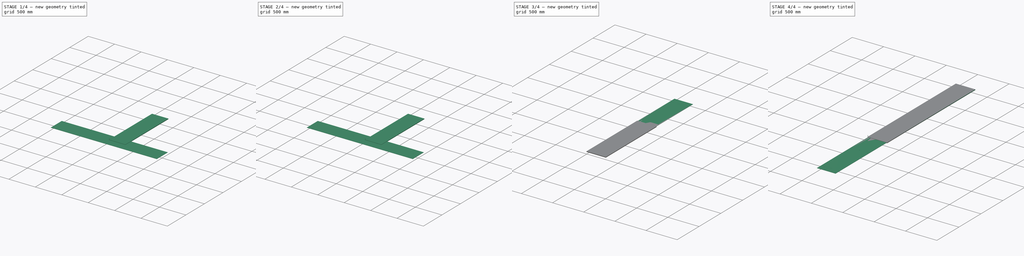
[diagram: build sequence overview — one tinted view per stage of 4, left to right]
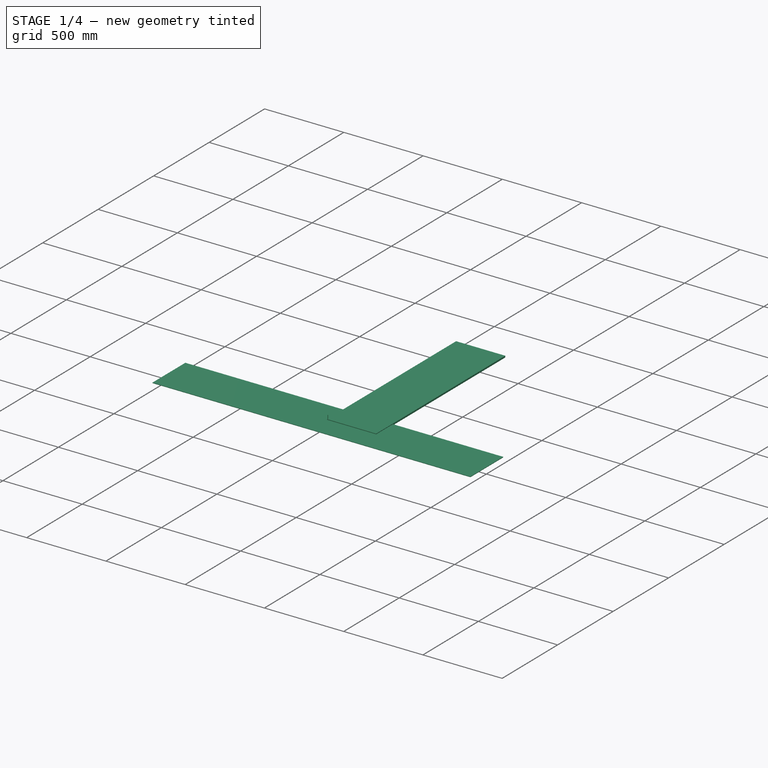
[diagram: stage 1 of 4 — iso view after this stage's code; geometry added in this stage tinted green]
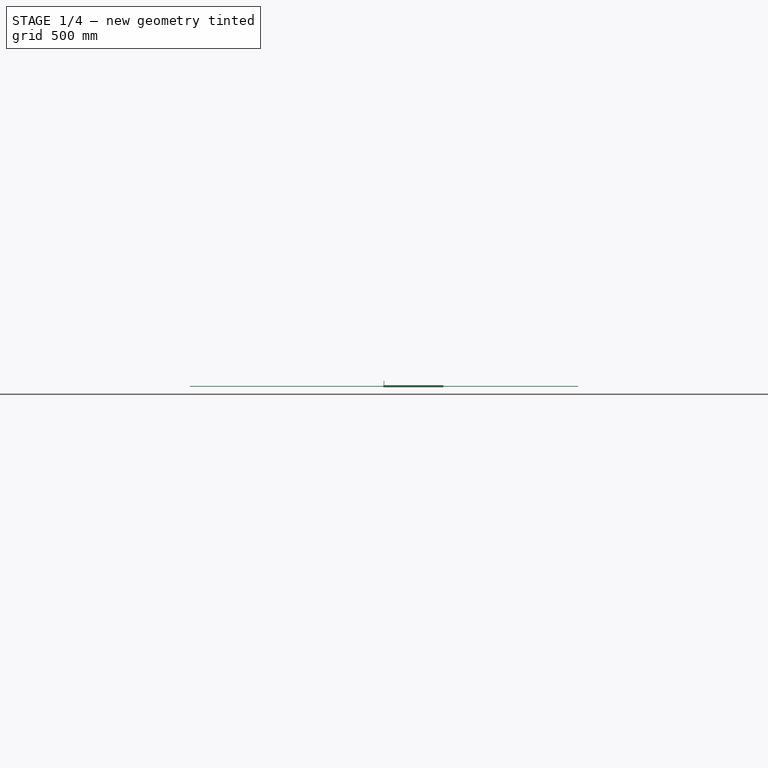
[diagram: stage 1 of 4 — front view after this stage's code; geometry added in this stage tinted green]
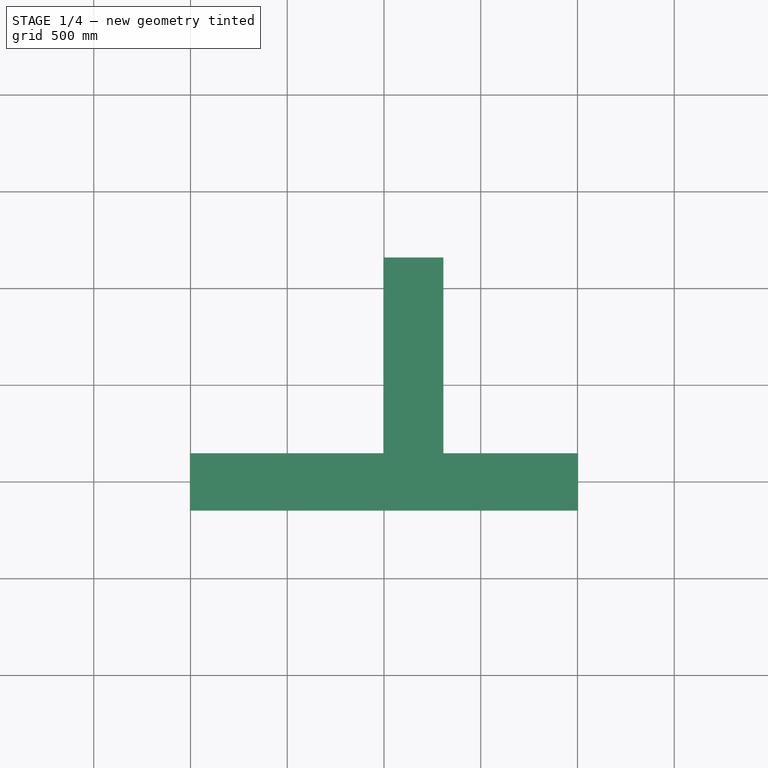
[diagram: stage 1 of 4 — top view after this stage's code; geometry added in this stage tinted green]
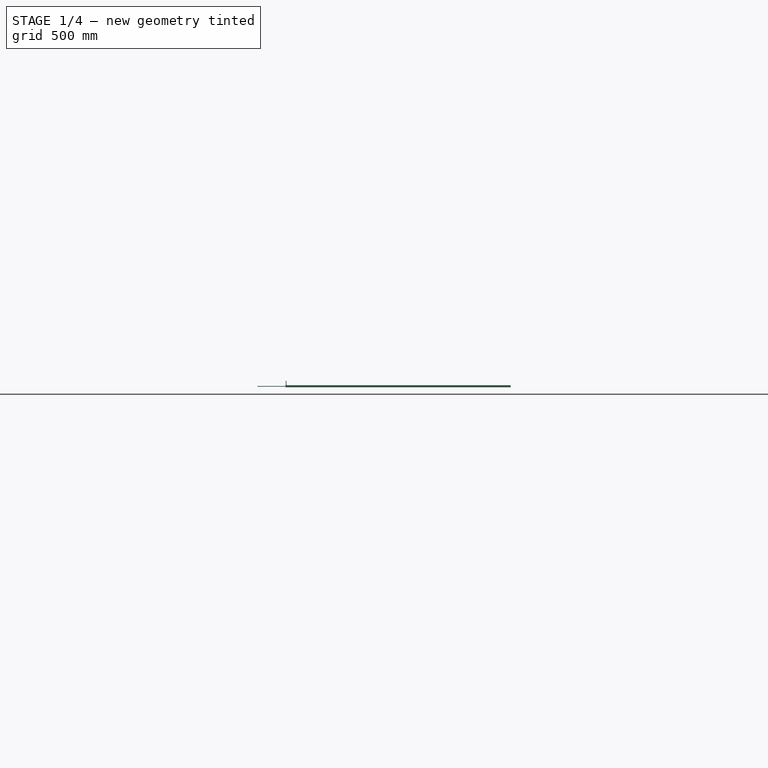
[diagram: stage 1 of 4 — right view after this stage's code; geometry added in this stage tinted green]
FCSTD DOCUMENT  (FreeCAD 0.22R35370 (Git))
Label: light_panel_2m
License: All rights reserved
LicenseURL: http://en.wikipedia.org/wiki/All_rights_reserved
objects: Part::FeaturePython×29, Path::FeaturePython×14, Sketcher::SketchObject×6, App::DocumentObjectGroup×6, PartDesign::SubShapeBinder×5, PartDesign::Pocket×4, Spreadsheet::Sheet×2, App::FeaturePython×2, PartDesign::Pad×1, Part::Part2DObjectPython×1, PartDesign::Body×1
note: 56 computed .brp shape members not serialized (recipe doc carries the construction recipe); baked Part::Feature solids carry a one-line shape summary decoded from their .brp
EXTERNAL_REF file=ULY-P91-20W.FCStd obj=Sketch001

FEATURE [Spreadsheet::Sheet] Spreadsheet  label="ТЗ"
  cells = A1='Светильник 50 мм от края по длине (левый и правый); A2='По ширине массив из 3 светильников, от края до края 300 мм; A3='длина массива 2000 мм; A4='Дырки под стяжки (20 мм от блока, 2 дырки); A5='6 крепёжных отверстий; A6='стяжки для светильника 2 шт по длине (расстояние 1/3 длины светильника); A7='все дырки 3,3 под провод 6 мм
FEATURE [Sketcher::SketchObject] Sketch
  FullyConstrained = true
  MapMode = 5
  Support = -> [XY_Plane]
  expr: Constraints[10] = <<Properties>>.length
  expr: Constraints[11] = <<Properties>>.width
  sketch-geometry (5):
    g0: LineSegment StartX=-1003.05 StartY=148.23 StartZ=0 EndX=-1003.05 EndY=-148.23 EndZ=0
    g1: LineSegment StartX=-1003.05 StartY=-148.23 StartZ=0 EndX=1003.05 EndY=-148.23 EndZ=0
    g2: LineSegment StartX=1003.05 StartY=-148.23 StartZ=0 EndX=1003.05 EndY=148.23 EndZ=0
    g3: LineSegment StartX=1003.05 StartY=148.23 StartZ=0 EndX=-1003.05 EndY=148.23 EndZ=0
    g4: GeomPoint X=0 Y=0 Z=0
  constraints (12):
    c: Coincident(g0,g1)
    c: Coincident(g1,g2)
    c: Coincident(g2,g3)
    c: Coincident(g3,g0)
    c: Horizontal(g1)
    c: Horizontal(g3)
    c: Vertical(g0)
    c: Vertical(g2)
    c: Symmetric(g1,g0,g4)
    c: Coincident(g4,g-1)
    c: DistanceX(g0,g2) = 2006.1
    c: DistanceY(g0,g2) = 296.46
FEATURE [PartDesign::SubShapeBinder] Binder  label="lamp_holes"
  BindCopyOnChange = 0
  BindMode = 0
  ClaimChildren = false
  Fuse = false
  MakeFace = false
  OffsetFill = false
  OffsetIntersection = false
  OffsetJoinType = 0
  OffsetOpenResult = false
  PartialLoad = false
  Relative = true
  Support = -> [<external ULY-P91-20W.FCStd>#Sketch001]
  _Version = 2
FEATURE [Sketcher::SketchObject] Sketch001
  ExternalGeometry = -> [Binder]
  FullyConstrained = true
  sketch-geometry (8):
    g0: Circle CenterX=-8.15 CenterY=-3.07e-14 CenterZ=0 NormalX=0 NormalY=0 NormalZ=1 AngleXU=0 Radius=1.65
    g1: Circle CenterX=8.15 CenterY=-3.07e-14 CenterZ=0 NormalX=0 NormalY=0 NormalZ=1 AngleXU=0 Radius=1.65
    g2: Circle CenterX=-8.15 CenterY=-12.5 CenterZ=0 NormalX=0 NormalY=0 NormalZ=1 AngleXU=0 Radius=1.65
    g3: Circle CenterX=8.15 CenterY=-12.5 CenterZ=0 NormalX=0 NormalY=0 NormalZ=1 AngleXU=0 Radius=1.65
    g4: LineSegment StartX=-6.5 StartY=-12.5 StartZ=0 EndX=6.5 EndY=-12.5 EndZ=0
    g5: LineSegment StartX=0 StartY=0 StartZ=0 EndX=0 EndY=-12.5 EndZ=0
    g6: LineSegment StartX=0 StartY=-12.5 StartZ=0 EndX=0 EndY=-3.02e-14 EndZ=0
    g7: LineSegment StartX=0 StartY=-3.07e-14 StartZ=0 EndX=12.5 EndY=0 EndZ=0
  constraints (23):
    c: Vertical(g1,g3)
    c: PointOnObject(g4,g2)
    c: PointOnObject(g4,g3)
    c: Horizontal(g4)
    c: DistanceX(g4,g4) = 13
    c: Equal(g3,g1)
    c: Equal(g3,g0)
    c: Equal(g3,g2)
    c: Diameter(g3) = 3.3
    c: Horizontal(g0,g1)
    c: PointOnObject(g2,g4)
    c: Symmetric(g2,g3,g-2)
    c: Coincident(g-1,g5)
    c: PointOnObject(g5,g4)
    c: Vertical(g5)
    c: Coincident(g5,g6)
    c: PointOnObject(g6,g-2)
    c: Coincident(g6,g7)
    c: Coincident(g7,g-3)
    c: Horizontal(g1,g6)
    c: Equal(g5,g6)
    c: Equal(g6,g7)
    c: Vertical(g0,g2)
FEATURE [PartDesign::SubShapeBinder] Binder001  label="lamp_fix_holes"
  BindCopyOnChange = 0
  BindMode = 0
  ClaimChildren = true
  Fuse = false
  MakeFace = false
  OffsetFill = false
  OffsetIntersection = false
  OffsetJoinType = 0
  OffsetOpenResult = false
  PartialLoad = false
  Placement = pos=(0,0,0) rot=(0,0,1;1.5708rad)
  Relative = false
  Support = -> [Sketch001,Binder,Sketch002]
  _Version = 2
FEATURE [Sketcher::SketchObject] Sketch002
  FullyConstrained = true
  sketch-geometry (3):
    g0: Circle CenterX=15 CenterY=70 CenterZ=0 NormalX=0 NormalY=0 NormalZ=1 AngleXU=0 Radius=1.65
    g1: Circle CenterX=25 CenterY=70 CenterZ=0 NormalX=0 NormalY=0 NormalZ=1 AngleXU=0 Radius=1.65
    g2: GeomPoint X=20 Y=70 Z=0
  constraints (7):
    c: Equal(g0,g1)
    c: Diameter(g0) = 3.3
    c: Horizontal(g0,g1)
    c: DistanceX(g0,g1) = 10
    c: DistanceY(g0) = 70
    c: Symmetric(g0,g1,g2)
    c: DistanceX(g2) = 20
FEATURE [Part::FeaturePython] LinearArray  # WARN: FeaturePython — macro-defined, semantics opaque (R4)
  Alignment = 0
  CellStart = A1
  Count = 3
  Dir = (0,1,0)
  DirIsDriven = true
  DistributionLaw = 0
  DrivenProperty = 1
  EndInclusive = true
  ExposePlacement = false
  GeneratorMode = 0
  MarkerShape = 1
  MarkerSize = 0
  NumElements = 3
  OrientMode = 0
  Placement = pos=(-905.55,-133.23,0) rot=(0,0,1;0rad)
  Point = (0,0,0)
  PointIsDriven = true
  Reverse = false
  SpanEnd = 245.96
  SpanStart = 0
  Step = 122.98
  Type = lattice2LinearArray.LinearArray
  VSGVersion = 1
  Values = 0.0 | 122.97999999999999 | 245.95999999999998
  ValuesSource = 2
  isLattice = 1
  expr: .Placement.Base.x = -<<Properties>>.length / 2 + 47.5 mm + 50 mm
  expr: .Placement.Base.y = -SpanEnd / 2 * .Dir.y - 40.5 mm / 2 + 10 mm
  expr: SpanEnd = <<Properties>>.width - 40.5 mm - 10 mm
FEATURE [Spreadsheet::Sheet] Spreadsheet001  label="Properties"
  cells = B2(length)==stillage_panel_length * sections_number + stillage_panel_gap * (sections_number - 1); C2(width)==(1500 mm - 3.175 mm * 4) / 5 - 1 mm; D2(stillage_panel_gap)==11.1 mm; E2(stillage_panel_length)==997.5 mm; F2(sections_number)=2; G2(fix_offset)==10 mm
FEATURE [Part::FeaturePython] PolarArray  # WARN: FeaturePython — macro-defined, semantics opaque (R4)
  Alignment = 0
  AttacherType = Attacher::AttachEngine3D
  CellStart = A1
  Count = 2
  DistributionLaw = 0
  EndInclusive = false
  ExposePlacement = false
  FlipX = false
  FlipZ = false
  GeneratorMode = 0
  MarkerShape = 1
  MarkerSize = 0
  NumElements = 2
  OrientMode = 2
  Radius = 250
  Reverse = false
  SpanEnd = 360
  SpanStart = 0
  Step = 180
  Type = lattice2PolarArray2.PolarArray
  UseArcRadius = false
  UseArcRange = 0
  VSGVersion = 1
  Values = 0.0 | 180.0
  ValuesSource = 2
  isLattice = 1
FEATURE [Part::FeaturePython] Populate  label="Populate PolarArray with LinearArray"  # WARN: FeaturePython — macro-defined, semantics opaque (R4)
  Copying = 0
  ExposePlacement = false
  MarkerShape = 1
  MarkerSize = 0
  NumElements = 6
  Object = -> LinearArray
  OutputCompounding = 0
  PlacementsTo = -> PolarArray
  Referencing = 1
  Type = lattice2PopulateCopies.LatticePopulateCopies
  isLattice = 1
FEATURE [Part::FeaturePython] Populate001  label="Populate Populate PolarArray with LinearArray with lamp_fix_holes"  # WARN: FeaturePython — macro-defined, semantics opaque (R4)
  Copying = 0
  ExposePlacement = false
  MarkerShape = 1
  MarkerSize = 0
  NumElements = 0
  Object = -> Binder001
  OutputCompounding = 1
  PlacementsTo = -> Populate
  Referencing = 0
  Type = lattice2PopulateCopies.LatticePopulateCopies
  isLattice = 0
FEATURE [PartDesign::SubShapeBinder] Binder002
  BindCopyOnChange = 0
  BindMode = 0
  ClaimChildren = true
  Context = -> Body [Binder002.]
  Fuse = false
  MakeFace = false
  OffsetFill = false
  OffsetIntersection = false
  OffsetJoinType = 0
  OffsetOpenResult = false
  PartialLoad = false
  Relative = true
  Support = -> [Populate001]
  _Version = 2
FEATURE [PartDesign::Pad] Pad
  Direction = (0,0,1)
  Length = 3
  Length2 = 10
  Profile = -> Sketch
  ReferenceAxis = -> Sketch [N_Axis]
  Type = 0
FEATURE [App::FeaturePython] SetupSheet  # Path/CAM operation (typed FeaturePython)
  ClearanceHeightExpression = OpStockZMax+SetupSheet.ClearanceHeightOffset
  ClearanceHeightOffset = 5
  CoolantMode = 0
  CoolantModes = None | Flood | Mist
  FinalDepthExpression = -0.1 mm
  HorizRapid = 0
  ProfileDirection = 1
  ProfileSide = 0
  ProfileUseComp = true
  ProfileprocessCircles = true
  ProfileprocessHoles = true
  ProfileprocessPerimeter = true
  SafeHeightExpression = OpStockZMax+SetupSheet.SafeHeightOffset
  SafeHeightOffset = 3
  StartDepthExpression = 3 mm
  StepDownExpression = 4 mm
  VertRapid = 0
FEATURE [Part::FeaturePython] ToolBit  label="3.175mm Endmill"  # Path/CAM toolbit (typed FeaturePython)
  BitPropertyNames = Chipload | CuttingEdgeHeight | Diameter | Flutes | Length | Material | ShankDiameter | SpindleDirection
  BitShape = <path>
  Chipload = 0
  CuttingEdgeHeight = 30
  Diameter = 3.17
  Flutes = 0
  Length = 10
  Material = 0
  ShankDiameter = 3
  ShapeName = endmill
  SpindleDirection = 0
FEATURE [Path::FeaturePython] __175mm_Endmill  label="3.175mm Endmill001"  # Path/CAM operation (typed FeaturePython)
  HorizFeed = 51.6667
  HorizRapid = 0
  SpindleDir = 0
  SpindleSpeed = 18000
  Tool = -> ToolBit
  ToolNumber = 1
  VertFeed = 16.6667
  VertRapid = 0
  expr: HorizRapid = SetupSheet.HorizRapid
  expr: VertRapid = SetupSheet.VertRapid
FEATURE [App::DocumentObjectGroup] Tools
  Group = -> [__175mm_Endmill]
FEATURE [Part::FeaturePython] Stock  # WARN: FeaturePython — macro-defined, semantics opaque (R4)
  Height = 10
  Length = 310
  Placement = pos=(-3,-3,-3) rot=(0,0,1;0rad)
  StockType = CreateBox
  Width = 1163
  expr: .Placement.Base.x = -3 mm
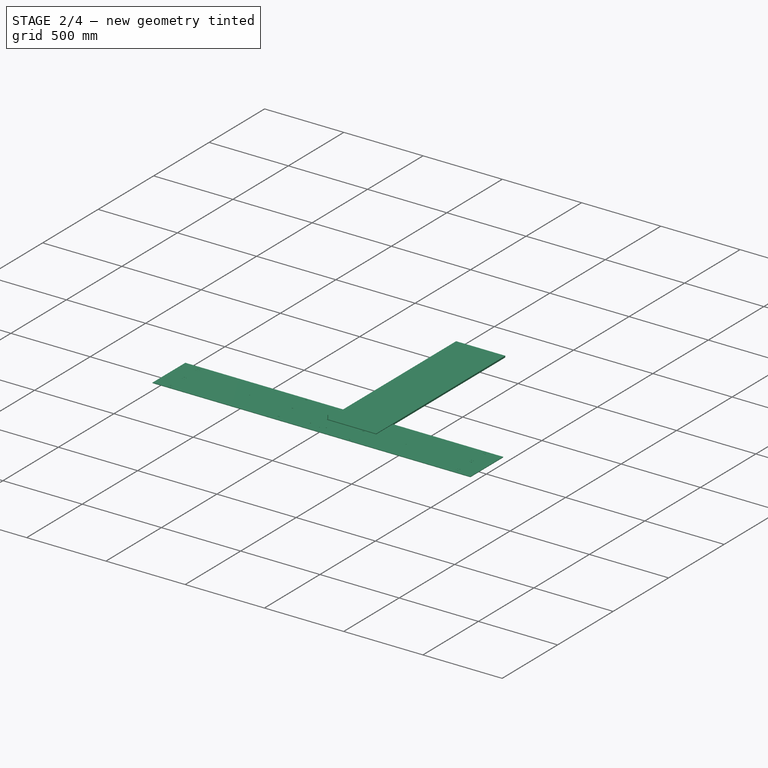
[diagram: stage 2 of 4 — iso view after this stage's code; geometry added in this stage tinted green]
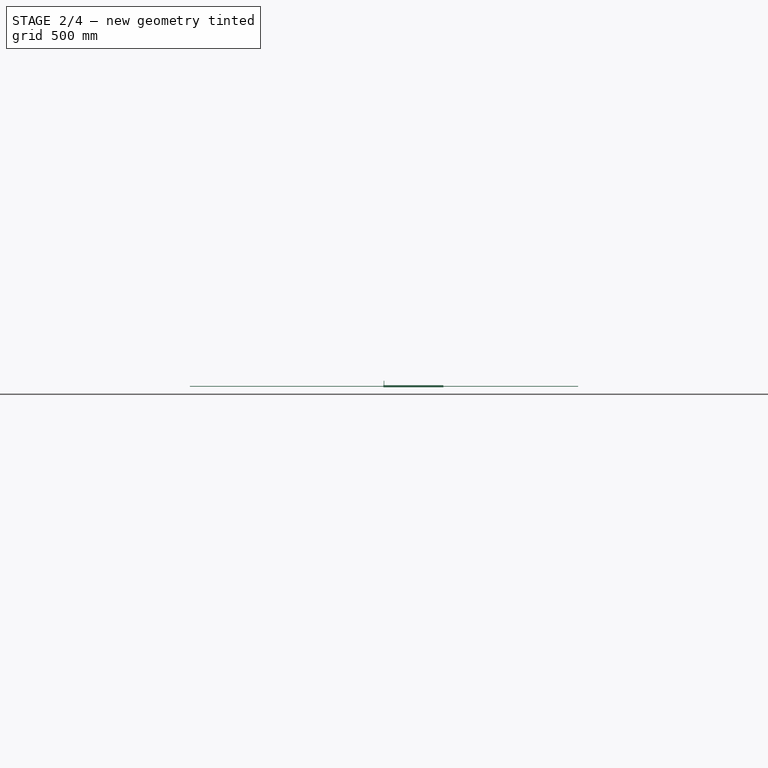
[diagram: stage 2 of 4 — front view after this stage's code; geometry added in this stage tinted green]
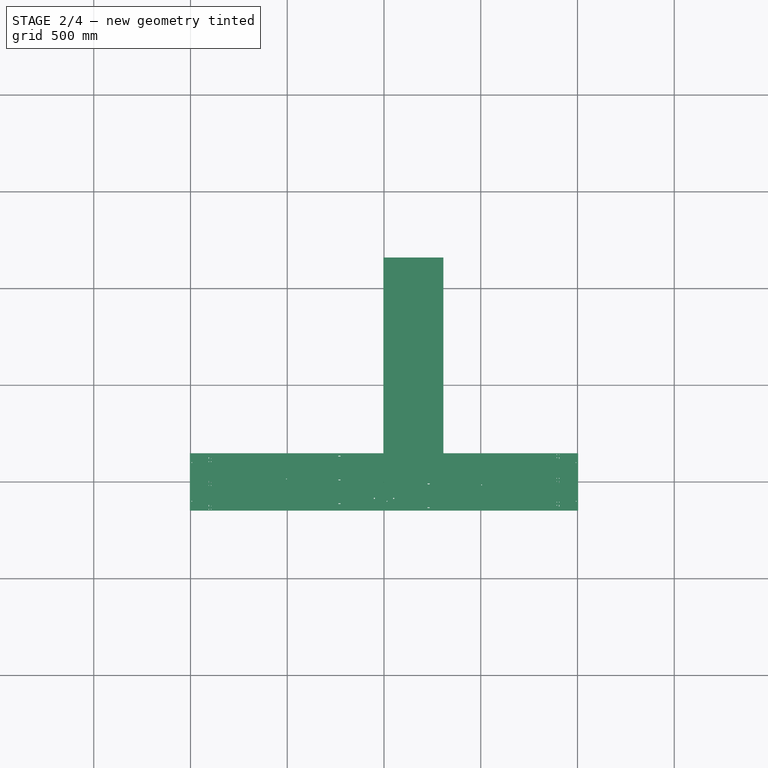
[diagram: stage 2 of 4 — top view after this stage's code; geometry added in this stage tinted green]
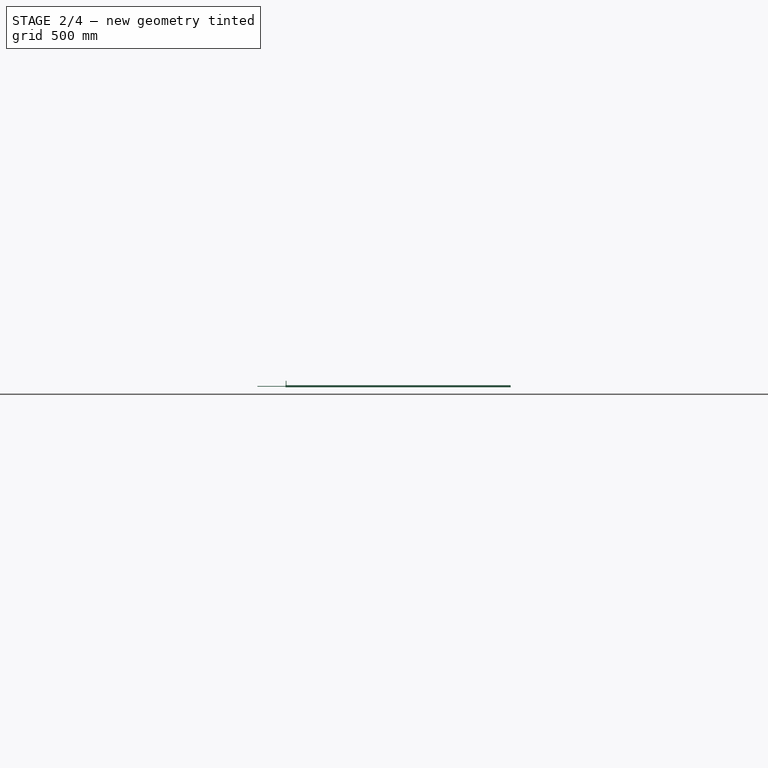
[diagram: stage 2 of 4 — right view after this stage's code; geometry added in this stage tinted green]
FEATURE [PartDesign::Pocket] Pocket
  BaseFeature = -> Pad
  Direction = (0,0,-1)
  Length = 5
  Length2 = 5
  Midplane = true
  Profile = -> Binder002
  Type = 1
FEATURE [Part::FeaturePython] LinearArray001  # WARN: FeaturePython — macro-defined, semantics opaque (R4)
  Alignment = 0
  CellStart = A1
  Count = 2
  Dir = (0,1,0)
  DirIsDriven = true
  DistributionLaw = 0
  DrivenProperty = 1
  EndInclusive = true
  ExposePlacement = false
  GeneratorMode = 0
  MarkerShape = 1
  MarkerSize = 0
  NumElements = 2
  OrientMode = 0
  Placement = pos=(0,-100,0) rot=(0,0,1;0rad)
  Point = (0,0,0)
  PointIsDriven = true
  Reverse = false
  SpanEnd = 200
  SpanStart = 0
  Step = 200
  Type = lattice2LinearArray.LinearArray
  VSGVersion = 1
  Values = 0.0 | 200.0
  ValuesSource = 2
  isLattice = 1
  expr: .Placement.Base.y = -SpanEnd / 2 * .Dir.y
FEATURE [Part::FeaturePython] Placment  label="Custom"  # WARN: FeaturePython — macro-defined, semantics opaque (R4)
  ExposePlacement = true
  FlipZ = false
  Invert = false
  MarkerShape = 1
  MarkerSize = 200
  NumElements = 1
  Placement = pos=(-993.05,0,0) rot=(0,0,1;0rad)
  PlacementChoice = 0
  Type = lattice2Placement.LatticePlacement
  isLattice = 1
  expr: .Placement.Base.x = -<<Properties>>.stillage_panel_length - <<Properties>>.stillage_panel_gap / 2 + <<Properties>>.fix_offset
FEATURE [Part::FeaturePython] Placment001  label="Custom001"  # WARN: FeaturePython — macro-defined, semantics opaque (R4)
  ExposePlacement = true
  FlipZ = false
  Invert = false
  MarkerShape = 1
  MarkerSize = 200
  NumElements = 1
  Placement = pos=(15.55,0,0) rot=(0,0,1;0rad)
  PlacementChoice = 0
  Type = lattice2Placement.LatticePlacement
  isLattice = 1
  expr: .Placement.Base.x = <<Properties>>.stillage_panel_gap / 2 + <<Properties>>.fix_offset
FEATURE [Part::FeaturePython] Placment002  label="Custom002"  # WARN: FeaturePython — macro-defined, semantics opaque (R4)
  ExposePlacement = true
  FlipZ = false
  Invert = false
  MarkerShape = 1
  MarkerSize = 200
  NumElements = 1
  Placement = pos=(993.05,0,0) rot=(0,0,1;0rad)
  PlacementChoice = 0
  Type = lattice2Placement.LatticePlacement
  isLattice = 1
  expr: .Placement.Base.x = -<<Custom>>.Placement.Base.x
FEATURE [Part::FeaturePython] Join  # WARN: FeaturePython — macro-defined, semantics opaque (R4)
  ExposePlacement = false
  Interleave = false
  Links = -> [Placment,Placment001,Placment002]
  MarkerShape = 1
  MarkerSize = 200
  NumElements = 3
  Type = lattice2JoinArrays.JoinArrays
  isLattice = 1
FEATURE [Part::FeaturePython] Populate002  label="Populate Join with LinearArray001"  # WARN: FeaturePython — macro-defined, semantics opaque (R4)
  Copying = 0
  ExposePlacement = false
  MarkerShape = 1
  MarkerSize = 0
  NumElements = 6
  Object = -> LinearArray001
  OutputCompounding = 0
  PlacementsTo = -> Join
  Referencing = 0
  Type = lattice2PopulateCopies.LatticePopulateCopies
  isLattice = 1
FEATURE [Part::Part2DObjectPython] Circle  label="hole_4mm"  # Draft 2D object (typed FeaturePython)
  Area = 0
  FirstAngle = 0
  LastAngle = 0
  MakeFace = false
  Radius = 2
FEATURE [PartDesign::SubShapeBinder] Binder003
  BindCopyOnChange = 0
  BindMode = 0
  ClaimChildren = true
  Context = -> Body [Binder003.]
  Fuse = false
  MakeFace = true
  OffsetFill = false
  OffsetIntersection = false
  OffsetJoinType = 0
  OffsetOpenResult = false
  PartialLoad = false
  Relative = true
  Support = -> [Populate003]
  _Version = 2
FEATURE [PartDesign::Pocket] Pocket001
  BaseFeature = -> Pocket
  Direction = (0,0,-1)
  Length = 5
  Length2 = 5
  Profile = -> Binder003
  Reversed = true
  Type = 1
FEATURE [Sketcher::SketchObject] Sketch003
  FullyConstrained = true
  MapMode = 5
  Support = -> [XY_Plane]
  sketch-geometry (2):
    g0: Circle CenterX=-50 CenterY=-85 CenterZ=0 NormalX=0 NormalY=0 NormalZ=1 AngleXU=0 Radius=3
    g1: Circle CenterX=50 CenterY=-85 CenterZ=0 NormalX=0 NormalY=0 NormalZ=1 AngleXU=0 Radius=3
  constraints (5):
    c: Symmetric(g0,g1,g-2)
    c: DistanceX(g0,g1) = 100
    c: Equal(g1,g0)
    c: Diameter(g1) = 6
    c: DistanceY(g1) = -85
FEATURE [PartDesign::Pocket] Pocket002
  BaseFeature = -> Pocket001
  Direction = (0,0,-1)
  Length = 5
  Length2 = 5
  Midplane = true
  Profile = -> Sketch003
  ReferenceAxis = -> Sketch003 [N_Axis]
  Type = 1
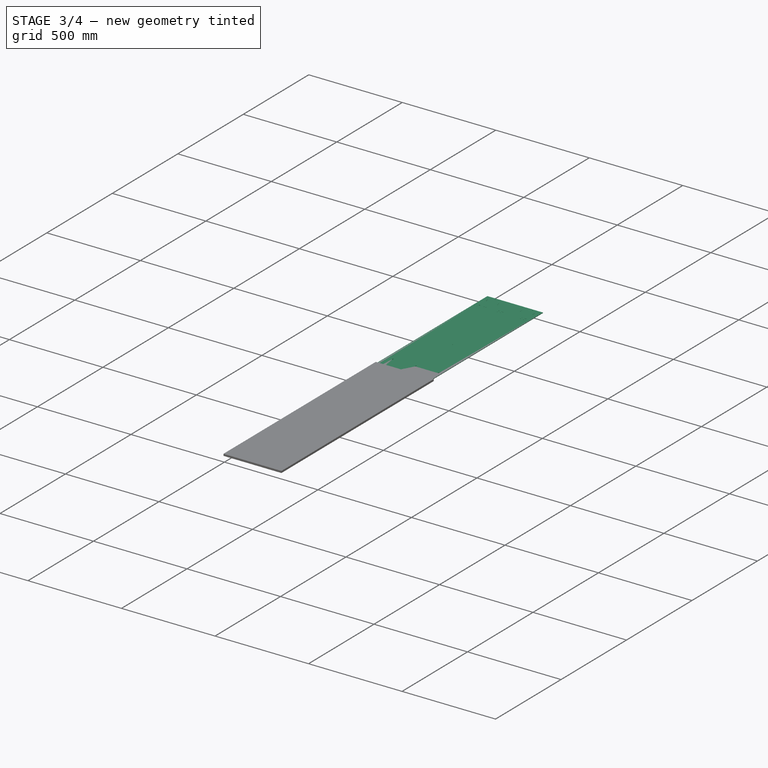
[diagram: stage 3 of 4 — iso view after this stage's code; geometry added in this stage tinted green]
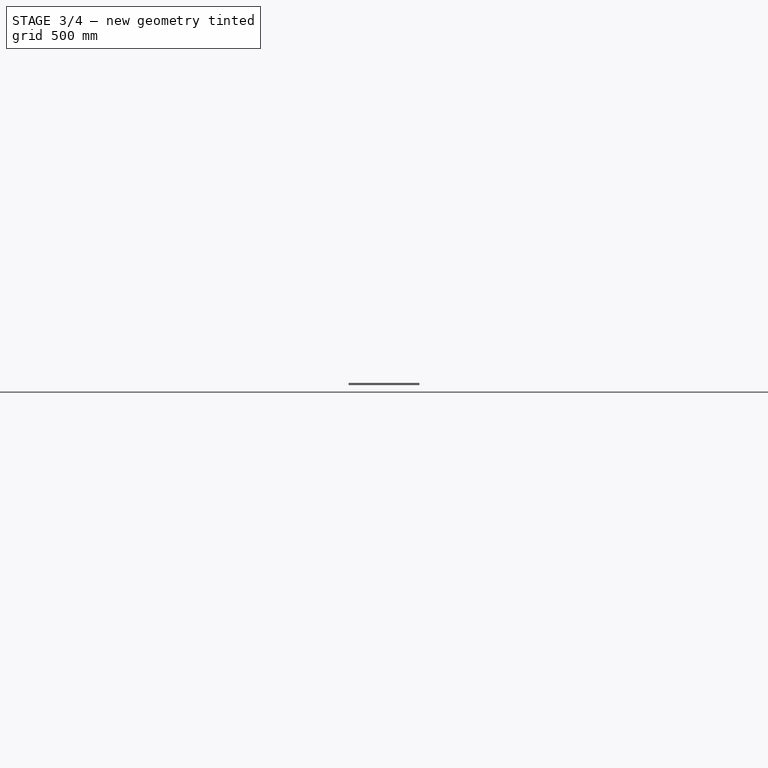
[diagram: stage 3 of 4 — front view after this stage's code; geometry added in this stage tinted green]
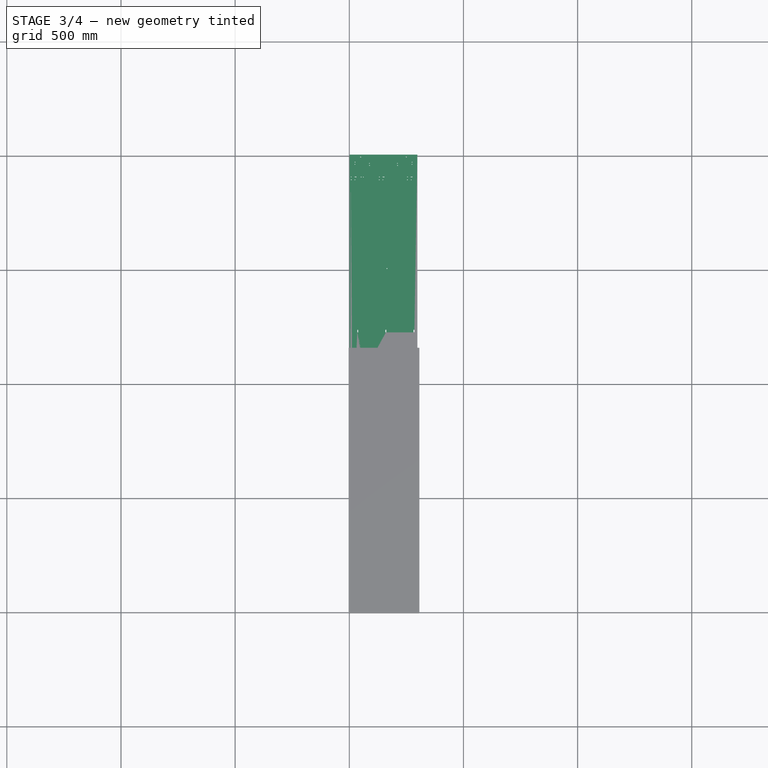
[diagram: stage 3 of 4 — top view after this stage's code; geometry added in this stage tinted green]
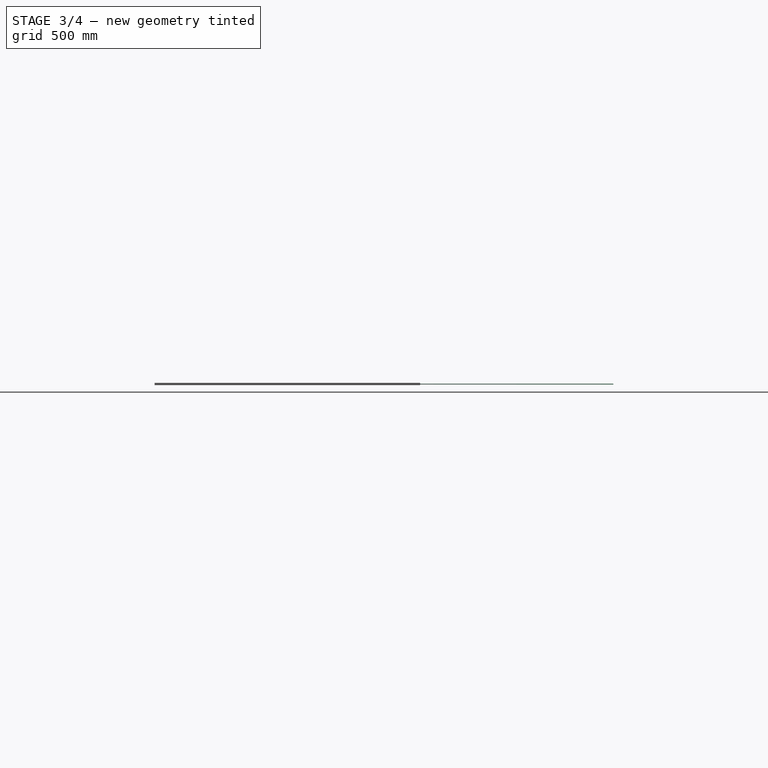
[diagram: stage 3 of 4 — right view after this stage's code; geometry added in this stage tinted green]
FEATURE [Part::FeaturePython] Placment003  label="Custom003"  # WARN: FeaturePython — macro-defined, semantics opaque (R4)
  ExposePlacement = true
  FlipZ = false
  Invert = false
  MarkerShape = 1
  MarkerSize = 100
  NumElements = 1
  Placement = pos=(-504.3,15,0) rot=(0,0,1;0rad)
  PlacementChoice = 0
  Type = lattice2Placement.LatticePlacement
  isLattice = 1
  expr: .Placement.Base.x = -(<<Properties>>.stillage_panel_length + <<Properties>>.stillage_panel_gap) / 2
FEATURE [Part::FeaturePython] Populate004  label="Populate PolarArray with Custom003"  # WARN: FeaturePython — macro-defined, semantics opaque (R4)
  Copying = 0
  ExposePlacement = false
  MarkerShape = 1
  MarkerSize = 0
  NumElements = 2
  Object = -> Placment003
  OutputCompounding = 0
  PlacementsTo = -> PolarArray
  Referencing = 1
  Type = lattice2PopulateCopies.LatticePopulateCopies
  isLattice = 1
FEATURE [Part::FeaturePython] Join001  # WARN: FeaturePython — macro-defined, semantics opaque (R4)
  ExposePlacement = false
  Interleave = false
  Links = -> [Populate002,Populate004]
  MarkerShape = 1
  MarkerSize = 0
  NumElements = 8
  Type = lattice2JoinArrays.JoinArrays
  isLattice = 1
FEATURE [Part::FeaturePython] Populate003  label="fix_holes"  # WARN: FeaturePython — macro-defined, semantics opaque (R4)
  Copying = 0
  ExposePlacement = false
  MarkerShape = 1
  MarkerSize = 0
  NumElements = 0
  Object = -> Circle
  OutputCompounding = 1
  PlacementsTo = -> Join001
  Referencing = 0
  Type = lattice2PopulateCopies.LatticePopulateCopies
  isLattice = 0
FEATURE [Sketcher::SketchObject] Sketch005  label="wire_fix"
  FullyConstrained = true
  sketch-geometry (3):
    g0: Circle CenterX=-4.65 CenterY=0 CenterZ=0 NormalX=0 NormalY=0 NormalZ=1 AngleXU=0 Radius=1.65
    g1: Circle CenterX=4.65 CenterY=0 CenterZ=0 NormalX=0 NormalY=0 NormalZ=1 AngleXU=0 Radius=1.65
    g2: LineSegment StartX=-3 StartY=0 StartZ=0 EndX=3 EndY=0 EndZ=0
  constraints (9):
    c: PointOnObject(g0,g-1)
    c: Equal(g0,g1)
    c: Diameter(g0) = 3.3
    c: PointOnObject(g2,g0)
    c: PointOnObject(g2,g1)
    c: Horizontal(g2)
    c: PointOnObject(g-1,g2)
    c: Symmetric(g0,g1,g-2)
    c: DistanceX(g2,g2) = 6
FEATURE [Part::FeaturePython] Placment004  label="Custom004"  # WARN: FeaturePython — macro-defined, semantics opaque (R4)
  ExposePlacement = true
  FlipZ = false
  Invert = false
  MarkerShape = 1
  MarkerSize = 50
  NumElements = 1
  Placement = pos=(960.55,61.25,0) rot=(0,0,1;0rad)
  PlacementChoice = 0
  Type = lattice2Placement.LatticePlacement
  isLattice = 1
FEATURE [Part::FeaturePython] Placment005  label="Custom005"  # WARN: FeaturePython — macro-defined, semantics opaque (R4)
  ExposePlacement = true
  FlipZ = false
  Invert = false
  MarkerShape = 1
  MarkerSize = 10
  NumElements = 1
  Placement = pos=(965.55,125,0) rot=(0,0,1;0rad)
  PlacementChoice = 0
  Type = lattice2Placement.LatticePlacement
  isLattice = 1
FEATURE [Part::FeaturePython] Join004  # WARN: FeaturePython — macro-defined, semantics opaque (R4)
  ExposePlacement = false
  Interleave = false
  Links = -> [Placment005,Placment004]
  MarkerShape = 1
  MarkerSize = 0
  NumElements = 2
  Type = lattice2JoinArrays.JoinArrays
  isLattice = 1
FEATURE [Part::FeaturePython] Mirror  label="Mirror of Custom004"  # WARN: FeaturePython — macro-defined, semantics opaque (R4)
  ExposePlacement = false
  FlipX = false
  FlipY = true
  FlipZ = false
  MarkerShape = 1
  MarkerSize = 100
  NumElements = 2
  Object = -> Join004
  ObjectTraversal = 0
  Type = lattice2Mirror.LatticeMirror
  isLattice = 1
FEATURE [PartDesign::SubShapeBinder] Binder004
  BindCopyOnChange = 0
  BindMode = 0
  ClaimChildren = true
  Context = -> Body [Binder004.]
  Fuse = false
  MakeFace = true
  OffsetFill = false
  OffsetIntersection = false
  OffsetJoinType = 0
  OffsetOpenResult = false
  PartialLoad = false
  Relative = true
  Support = -> [Populate005]
  _Version = 2
FEATURE [PartDesign::Pocket] Pocket004
  BaseFeature = -> Pocket002
  Direction = (0,0,-1)
  Length = 5
  Length2 = 5
  Midplane = true
  Profile = -> Binder004
  Type = 1
FEATURE [PartDesign::Body] Body
  Group = -> [Sketch,Binder002,Pad,Pocket,Binder003,Pocket001,Sketch003,Pocket002,Sketch004,Binder004,Pocket004]
  Origin = -> Origin
  Tip = -> Pocket004
FEATURE [Part::FeaturePython] Clone  label="Model-Body"  # Draft clone (typed FeaturePython)
  AttacherType = Attacher::AttachEngine3D
  Fuse = false
  Objects = -> [Body]
  PathResource = Model
  Placement = pos=(149.815,1003.05,0) rot=(0,0,-1;1.5708rad)
  Scale = (1,1,1)
  expr: .Placement.Base.x = <<Properties>>.width / 2 + <<3.175mm Endmill>>.Diameter / 2
  expr: .Placement.Base.y = <<Properties>>.length / 2
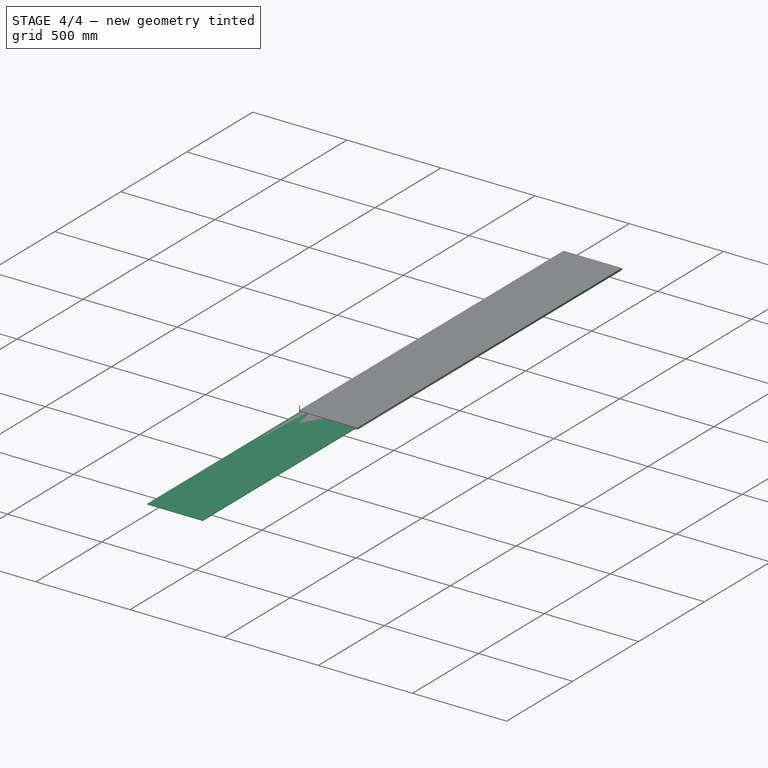
[diagram: stage 4 of 4 — iso view after this stage's code; geometry added in this stage tinted green]
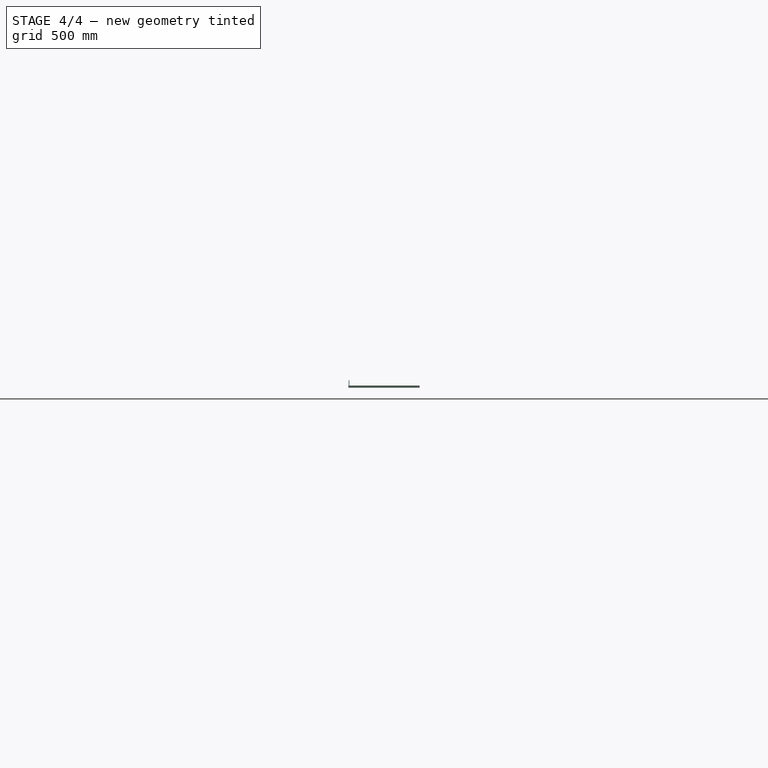
[diagram: stage 4 of 4 — front view after this stage's code; geometry added in this stage tinted green]
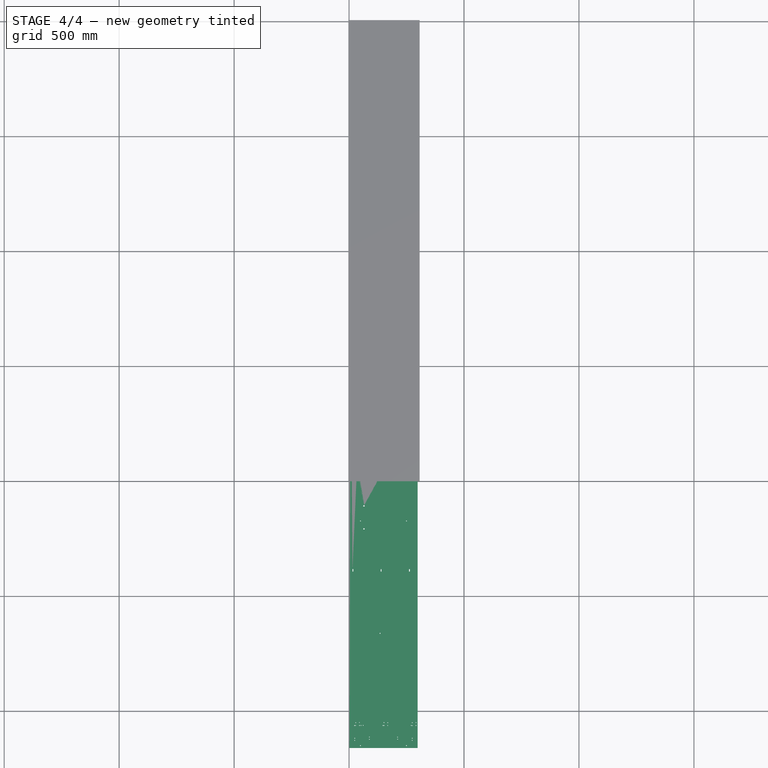
[diagram: stage 4 of 4 — top view after this stage's code; geometry added in this stage tinted green]
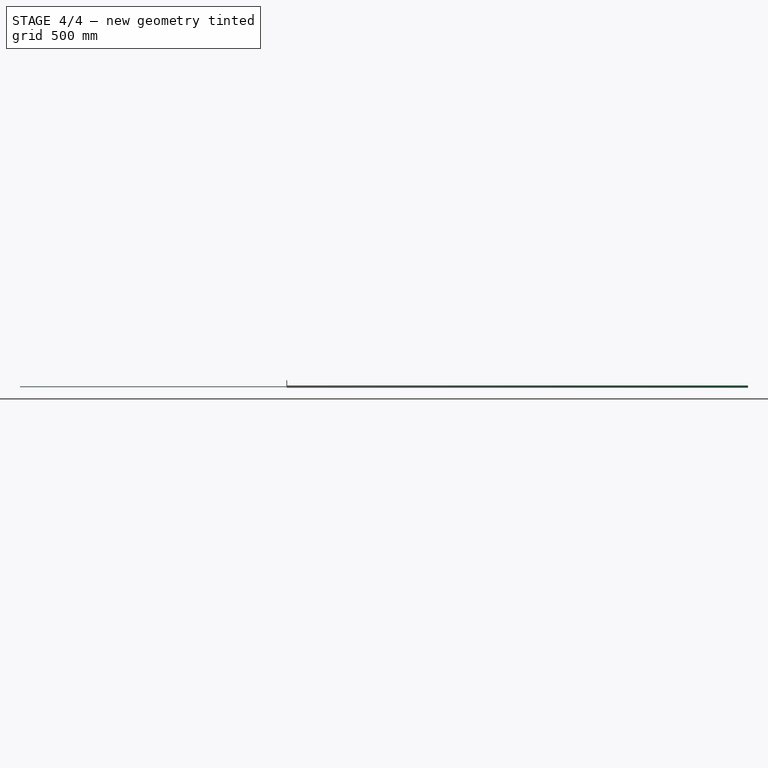
[diagram: stage 4 of 4 — right view after this stage's code; geometry added in this stage tinted green]
FEATURE [Sketcher::SketchObject] Sketch004
  FullyConstrained = true
  MapMode = 5
  Support = -> [XY_Plane]
  sketch-geometry (7):
    g0: GeomPoint X=960.55 Y=61.25 Z=0
    g1: LineSegment StartX=960.55 StartY=0 StartZ=0 EndX=960.55 EndY=61.25 EndZ=0
    g2: LineSegment StartX=960.55 StartY=61.25 StartZ=0 EndX=960.55 EndY=122.5 EndZ=0
    g3: Circle CenterX=955.35 CenterY=61.25 CenterZ=0 NormalX=0 NormalY=0 NormalZ=1 AngleXU=0 Radius=1.7
    g4: Circle CenterX=965.75 CenterY=61.25 CenterZ=0 NormalX=0 NormalY=0 NormalZ=1 AngleXU=0 Radius=1.7
    g5: LineSegment StartX=957.05 StartY=61.25 StartZ=0 EndX=960.55 EndY=61.25 EndZ=0
    g6: LineSegment StartX=960.55 StartY=61.25 StartZ=0 EndX=964.05 EndY=61.25 EndZ=0
  constraints (20):
    c: PointOnObject(g1,g-1)
    c: Coincident(g1,g0)
    c: Vertical(g1)
    c: Coincident(g1,g2)
    c: Vertical(g2)
    c: Equal(g1,g2)
    c: Equal(g3,g4)
    c: Diameter(g3) = 3.4
    c: PointOnObject(g5,g3)
    c: Coincident(g5,g0)
    c: Coincident(g5,g6)
    c: PointOnObject(g6,g4)
    c: Equal(g6,g5)
    c: Horizontal(g3,g5)
    c: Horizontal(g5,g6)
    c: Horizontal(g6,g4)
    c: DistanceX(g5,g6) = 7
    c: Horizontal(g6)
    c: DistanceX(g2) = 960.55
    c: DistanceY(g2) = 122.5
FEATURE [App::FeaturePython] SetupSheet001  # Path/CAM operation (typed FeaturePython)
  ClearanceHeightExpression = OpStockZMax+SetupSheet001.ClearanceHeightOffset
  ClearanceHeightOffset = 5
  CoolantMode = 0
  CoolantModes = None | Flood | Mist
  FinalDepthExpression = -0.1 mm
  HorizRapid = 0
  ProfileDirection = 1
  ProfileSide = 0
  ProfileUseComp = true
  ProfileprocessCircles = true
  ProfileprocessHoles = true
  ProfileprocessPerimeter = true
  SafeHeightExpression = OpStockZMax+SetupSheet001.SafeHeightOffset
  SafeHeightOffset = 3
  StartDepthExpression = 3 mm
  StepDownExpression = 4 mm
  VertRapid = 0
FEATURE [Part::FeaturePython] ToolBit001  label="3.175mm Endmill003"  # Path/CAM toolbit (typed FeaturePython)
  BitPropertyNames = Chipload | CuttingEdgeHeight | Diameter | Flutes | Length | Material | ShankDiameter | SpindleDirection
  BitShape = <path>
  Chipload = 0
  CuttingEdgeHeight = 30
  Diameter = 3.17
  Flutes = 0
  Length = 10
  Material = 0
  ShankDiameter = 3
  ShapeName = endmill
  SpindleDirection = 0
FEATURE [Path::FeaturePython] __175mm_Endmill001  label="3.175mm Endmill002"  # Path/CAM operation (typed FeaturePython)
  HorizFeed = 51.6667
  HorizRapid = 0
  SpindleDir = 0
  SpindleSpeed = 18000
  Tool = -> ToolBit001
  ToolNumber = 1
  VertFeed = 16.6667
  VertRapid = 0
  expr: HorizRapid = SetupSheet001.HorizRapid
  expr: VertRapid = SetupSheet001.VertRapid
FEATURE [App::DocumentObjectGroup] Tools001
  Group = -> [__175mm_Endmill001]
FEATURE [Part::FeaturePython] Stock003  # WARN: FeaturePython — macro-defined, semantics opaque (R4)
  Height = 10
  Length = 310
  Placement = pos=(-3,0,-3) rot=(0,0,1;0rad)
  StockType = CreateBox
  Width = 2006.1
FEATURE [App::DocumentObjectGroup] Model
  Group = -> [Clone]
FEATURE [Path::FeaturePython] Profile  # Path/CAM operation (typed FeaturePython)
  Active = false
  AreaParams:
    Tolerance = 1e-07
    FitArcs = True
    Simplify = False
    CleanDistance = 0.0
    Accuracy = 0.01
    Unit = 1.0
    MinArcPoints = 4
    MaxArcPoints = 100
    ClipperScale = 10000000.0
    Fill = 0
    Coplanar = 0
    Reorient = True
    Outline = False
    Explode = False
    OpenMode = 0
    Deflection = 0.01
    SubjectFill = 0
    ClipFill = 0
    Offset = -1.585
    ExtraPass = 0
    Stepover = 0.0
    LastStepover = 0.0
    JoinType = 0
    EndType = 0
    MiterLimit = 2.0
    RoundPrecision = 0.0
    PocketMode = 0
    ToolRadius = 1.0
    PocketExtraOffset = 0.0
    PocketStepover = 0.0
    PocketLastStepover = 0.0
    FromCenter = False
    Angle = 45.0
    AngleShift = 0.0
    Shift = 0.0
    Thicken = False
    SectionCount = -1
    Stepdown = 1.0
    SectionOffset = 0.0
    SectionTolerance = 1e-07
    SectionMode = 2
    Project = False
  Base = -> [Clone]
  ClearanceHeight = 12
  CoolantMode = 0
  CycleTime = 00:03:17
  Direction = 1
  FinalDepth = -0.1
  HandleMultipleFeatures = 0
  JoinType = 0
  MiterLimit = 0.1
  OffsetExtra = 0
  OpFinalDepth = 0
  OpStartDepth = 7
  OpStockZMax = 7
  OpStockZMin = -3
  OpToolDiameter = 3.17
  PathParams = {'orientation': 1, 'feedrate': 51.666666666666664, 'feedrate_v': 16.666666666666668, 'verbose': True, 'resume_height': 10.0, 'retraction': 12.0, 'return_end': True, 'preamble': False, 'start': Vector (52.10876076090792, 1908.0518400452318, 12.0)}
  SafeHeight = 10
  Side = 0
  SplitArcs = false
  StartDepth = 3
  StartPoint = (0,0,0)
  StepDown = 4
  ToolController = -> __175mm_Endmill
  UseComp = true
  UseStartPoint = false
  processCircles = true
  processHoles = true
  processPerimeter = false
  expr: ClearanceHeight = OpStockZMax + SetupSheet.ClearanceHeightOffset
  expr: FinalDepth = -0.1 mm
  expr: SafeHeight = OpStockZMax + SetupSheet.SafeHeightOffset
  expr: StartDepth = 3 mm
  expr: StepDown = 4 mm
FEATURE [Path::FeaturePython] DressupPathBoundary  # Path/CAM operation (typed FeaturePython)
  Base = -> Profile
  Inside = true
  Stock = -> Stock
FEATURE [Part::FeaturePython] Clone001  label="Model-Body001"  # Draft clone (typed FeaturePython)
  AttacherType = Attacher::AttachEngine3D
  Fuse = false
  Objects = -> [Body]
  PathResource = Model
  Placement = pos=(149.815,-156.95,0) rot=(0,0,-1;1.5708rad)
  Scale = (1,1,1)
  expr: .Placement.Base.x = <<Model-Body>>.Placement.Base.x
  expr: .Placement.Base.y = <<Properties>>.length / 2 - Stock.Width - Stock.Placement.Base.y
FEATURE [App::DocumentObjectGroup] Model001
  Group = -> [Clone001]
FEATURE [Path::FeaturePython] Profile001  # Path/CAM operation (typed FeaturePython)
  Active = false
  AreaParams:
    Tolerance = 1e-07
    FitArcs = True
    Simplify = False
    CleanDistance = 0.0
    Accuracy = 0.01
    Unit = 1.0
    MinArcPoints = 4
    MaxArcPoints = 100
    ClipperScale = 10000000.0
    Fill = 0
    Coplanar = 0
    Reorient = True
    Outline = False
    Explode = False
    OpenMode = 0
    Deflection = 0.01
    SubjectFill = 0
    ClipFill = 0
    Offset = -1.585
    ExtraPass = 0
    Stepover = 0.0
    LastStepover = 0.0
    JoinType = 0
    EndType = 0
    MiterLimit = 2.0
    RoundPrecision = 0.0
    PocketMode = 0
    ToolRadius = 1.0
    PocketExtraOffset = 0.0
    PocketStepover = 0.0
    PocketLastStepover = 0.0
    FromCenter = False
    Angle = 45.0
    AngleShift = 0.0
    Shift = 0.0
    Thicken = False
    SectionCount = -1
    Stepdown = 1.0
    SectionOffset = 0.0
    SectionTolerance = 1e-07
    SectionMode = 2
    Project = False
  Base = -> [Clone001]
  ClearanceHeight = 12
  CoolantMode = 0
  CycleTime = 00:03:32
  Direction = 1
  FinalDepth = -0.1
  HandleMultipleFeatures = 0
  JoinType = 0
  MiterLimit = 0.1
  OffsetExtra = 0
  OpFinalDepth = 0
  OpStartDepth = 7
  OpStockZMax = 7
  OpStockZMin = -3
  OpToolDiameter = 3.17
  PathParams = {'orientation': 1, 'feedrate': 51.666666666666664, 'feedrate_v': 16.666666666666668, 'verbose': True, 'resume_height': 10.0, 'retraction': 12.0, 'return_end': True, 'preamble': False, 'start': Vector (274.8147470537696, -1117.9062687643489, 12.0)}
  SafeHeight = 10
  Side = 0
  SplitArcs = false
  StartDepth = 3
  StartPoint = (0,0,0)
  StepDown = 4
  ToolController = -> __175mm_Endmill001
  UseComp = true
  UseStartPoint = false
  processCircles = true
  processHoles = true
  processPerimeter = false
  expr: ClearanceHeight = OpStockZMax + SetupSheet001.ClearanceHeightOffset
  expr: FinalDepth = -0.1 mm
  expr: SafeHeight = OpStockZMax + SetupSheet001.SafeHeightOffset
  expr: StartDepth = 3 mm
  expr: StepDown = 4 mm
FEATURE [Path::FeaturePython] DressupPathBoundary001  # Path/CAM operation (typed FeaturePython)
  Base = -> Profile001
  Inside = true
  Stock = -> Stock003
FEATURE [Part::FeaturePython] Placment006  label="Custom006"  # WARN: FeaturePython — macro-defined, semantics opaque (R4)
  ExposePlacement = true
  FlipZ = false
  Invert = false
  MarkerShape = 1
  MarkerSize = 100
  NumElements = 1
  Placement = pos=(905,-93,0) rot=(0,0,1;1.5708rad)
  PlacementChoice = 0
  Type = lattice2Placement.LatticePlacement
  isLattice = 1
FEATURE [Part::FeaturePython] Join002  # WARN: FeaturePython — macro-defined, semantics opaque (R4)
  ExposePlacement = false
  Interleave = false
  Links = -> [Mirror,Join004,Placment006]
  MarkerShape = 1
  MarkerSize = 0
  MirrorJoinLinks = -> [Mirror]
  NumElements = 5
  Type = lattice2JoinArrays.JoinArrays
  isLattice = 1
  expr: Links = list(MirrorJoinLinks[0]; .MirrorJoinLinks[0].Object; <<Custom006>>._self)
  expr: MirrorJoinLinks = <<Mirror of Custom004>>._self
FEATURE [Part::FeaturePython] Mirror001  label="Mirror001 of Join002"  # WARN: FeaturePython — macro-defined, semantics opaque (R4)
  ExposePlacement = false
  FlipX = true
  FlipY = false
  FlipZ = false
  MarkerShape = 1
  MarkerSize = 0
  NumElements = 5
  Object = -> Join002
  ObjectTraversal = 0
  Type = lattice2Mirror.LatticeMirror
  isLattice = 1
FEATURE [Part::FeaturePython] Join003  # WARN: FeaturePython — macro-defined, semantics opaque (R4)
  ExposePlacement = false
  Interleave = false
  Links = -> [Mirror001,Join002]
  MarkerShape = 1
  MarkerSize = 10
  NumElements = 10
  Type = lattice2JoinArrays.JoinArrays
  isLattice = 1
FEATURE [Part::FeaturePython] Populate005  label="Populate Join003 with wire_fix"  # WARN: FeaturePython — macro-defined, semantics opaque (R4)
  Copying = 0
  ExposePlacement = false
  MarkerShape = 1
  MarkerSize = 0
  NumElements = 0
  Object = -> Sketch005
  OutputCompounding = 1
  PlacementsTo = -> Join003
  Referencing = 0
  Type = lattice2PopulateCopies.LatticePopulateCopies
  isLattice = 0
FEATURE [Path::FeaturePython] Profile002  # Path/CAM operation (typed FeaturePython)
  Active = true
  AreaParams:
    Tolerance = 1e-07
    FitArcs = True
    Simplify = False
    CleanDistance = 0.0
    Accuracy = 0.01
    Unit = 1.0
    MinArcPoints = 4
    MaxArcPoints = 100
    ClipperScale = 10000000.0
    Fill = 0
    Coplanar = 0
    Reorient = True
    Outline = False
    Explode = False
    OpenMode = 0
    Deflection = 0.01
    SubjectFill = 0
    ClipFill = 0
    Offset = 1.585
    ExtraPass = 0
    Stepover = 0.0
    LastStepover = 0.0
    JoinType = 0
    EndType = 0
    MiterLimit = 2.0
    RoundPrecision = 0.0
    PocketMode = 0
    ToolRadius = 1.0
    PocketExtraOffset = 0.0
    PocketStepover = 0.0
    PocketLastStepover = 0.0
    FromCenter = False
    Angle = 45.0
    AngleShift = 0.0
    Shift = 0.0
    Thicken = False
    SectionCount = -1
    Stepdown = 1.0
    SectionOffset = 0.0
    SectionTolerance = 1e-07
    SectionMode = 2
    Project = False
  ClearanceHeight = 12
  CoolantMode = 0
  CycleTime = 00:02:10
  Direction = 1
  FinalDepth = -0.1
  HandleMultipleFeatures = 0
  JoinType = 0
  MiterLimit = 0.1
  OffsetExtra = 0
  OpFinalDepth = -3
  OpStartDepth = 7
  OpStockZMax = 7
  OpStockZMin = -3
  OpToolDiameter = 3.17
  PathParams = {'orientation': 0, 'feedrate': 51.666666666666664, 'feedrate_v': 16.666666666666668, 'verbose': True, 'resume_height': 10.0, 'retraction': 12.0, 'return_end': True, 'preamble': False}
  SafeHeight = 10
  Side = 0
  SplitArcs = false
  StartDepth = 3
  StartPoint = (0,0,0)
  StepDown = 4
  ToolController = -> __175mm_Endmill
  UseComp = true
  UseStartPoint = false
  processCircles = true
  processHoles = true
  processPerimeter = true
  expr: ClearanceHeight = OpStockZMax + SetupSheet.ClearanceHeightOffset
  expr: FinalDepth = -0.1 mm
  expr: SafeHeight = OpStockZMax + SetupSheet.SafeHeightOffset
  expr: StartDepth = 3 mm
  expr: StepDown = 4 mm
FEATURE [Path::FeaturePython] DressupPathBoundary002  # Path/CAM operation (typed FeaturePython)
  Base = -> Profile002
  Inside = true
  Stock = -> Stock
FEATURE [Path::FeaturePython] Profile003  # Path/CAM operation (typed FeaturePython)
  Active = true
  AreaParams:
    Tolerance = 1e-07
    FitArcs = True
    Simplify = False
    CleanDistance = 0.0
    Accuracy = 0.01
    Unit = 1.0
    MinArcPoints = 4
    MaxArcPoints = 100
    ClipperScale = 10000000.0
    Fill = 0
    Coplanar = 0
    Reorient = True
    Outline = False
    Explode = False
    OpenMode = 0
    Deflection = 0.01
    SubjectFill = 0
    ClipFill = 0
    Offset = 1.585
    ExtraPass = 0
    Stepover = 0.0
    LastStepover = 0.0
    JoinType = 0
    EndType = 0
    MiterLimit = 2.0
    RoundPrecision = 0.0
    PocketMode = 0
    ToolRadius = 1.0
    PocketExtraOffset = 0.0
    PocketStepover = 0.0
    PocketLastStepover = 0.0
    FromCenter = False
    Angle = 45.0
    AngleShift = 0.0
    Shift = 0.0
    Thicken = False
    SectionCount = -1
    Stepdown = 1.0
    SectionOffset = 0.0
    SectionTolerance = 1e-07
    SectionMode = 2
    Project = False
  ClearanceHeight = 12
  CoolantMode = 0
  CycleTime = 00:01:48
  Direction = 1
  FinalDepth = -0.1
  HandleMultipleFeatures = 0
  JoinType = 0
  MiterLimit = 0.1
  OffsetExtra = 0
  OpFinalDepth = -3
  OpStartDepth = 7
  OpStockZMax = 7
  OpStockZMin = -3
  OpToolDiameter = 3.17
  PathParams = {'orientation': 0, 'feedrate': 51.666666666666664, 'feedrate_v': 16.666666666666668, 'verbose': True, 'resume_height': 10.0, 'retraction': 12.0, 'return_end': True, 'preamble': False}
  SafeHeight = 10
  Side = 0
  SplitArcs = false
  StartDepth = 3
  StartPoint = (0,0,0)
  StepDown = 4
  ToolController = -> __175mm_Endmill001
  UseComp = true
  UseStartPoint = false
  processCircles = true
  processHoles = true
  processPerimeter = true
  expr: ClearanceHeight = OpStockZMax + SetupSheet001.ClearanceHeightOffset
  expr: FinalDepth = -0.1 mm
  expr: SafeHeight = OpStockZMax + SetupSheet001.SafeHeightOffset
  expr: StartDepth = 3 mm
  expr: StepDown = 4 mm
FEATURE [Path::FeaturePython] DressupPathBoundary003  # Path/CAM operation (typed FeaturePython)
  Base = -> Profile003
  Inside = true
  Stock = -> Stock003
FEATURE [Path::FeaturePython] Array  # Path/CAM operation (typed FeaturePython)
  Active = true
  Angle = 0
  Base = -> [DressupPathBoundary,DressupPathBoundary002]
  Centre = (0,0,0)
  Copies = 1
  CopiesX = 0
  CopiesY = 0
  JitterMagnitude = (0,0,0)
  JitterPercent = 0
  JitterSeed = 0
  Offset = (299.73,0,0)
  SwapDirection = false
  ToolController = -> __175mm_Endmill
  Type = 0
  expr: .Offset.x = <<Properties>>.width + <<3.175mm Endmill>>.Diameter + 0.1 mm
FEATURE [App::DocumentObjectGroup] Operations
  Group = -> [DressupPathBoundary,DressupPathBoundary002,Array]
FEATURE [Path::FeaturePython] Job  # Path/CAM operation (typed FeaturePython)
  CycleTime = 00:02:10
  Fixtures = G54
  GeometryTolerance = 0.01
  JobType = 0
  LastPostProcessDate = 2023-07-07 10:34:57.460978
  LastPostProcessOutput = <userpath>/0744-27F3/Job1.tap
  Model = -> Model
  Operations = -> Operations
  OrderOutputBy = 0
  PostProcessor = 2
  PostProcessorOutputFile = %j.tap
  SetupSheet = -> SetupSheet
  SplitOutput = false
  Stock = -> Stock
  Tools = -> Tools
FEATURE [Path::FeaturePython] Array001  # Path/CAM operation (typed FeaturePython)
  Active = true
  Angle = 0
  Base = -> [DressupPathBoundary001,DressupPathBoundary003]
  Centre = (0,0,0)
  Copies = 1
  CopiesX = 0
  CopiesY = 0
  JitterMagnitude = (0,0,0)
  JitterPercent = 0
  JitterSeed = 0
  Offset = (299.73,0,0)
  SwapDirection = false
  ToolController = -> __175mm_Endmill001
  Type = 0
  expr: Copies = Array.Copies
  expr: Offset = Array.Offset
FEATURE [App::DocumentObjectGroup] Operations001
  Group = -> [DressupPathBoundary001,DressupPathBoundary003,Array001]
FEATURE [Path::FeaturePython] Job001  # Path/CAM operation (typed FeaturePython)
  CycleTime = 00:01:48
  Fixtures = G54
  GeometryTolerance = 0.01
  JobType = 0
  LastPostProcessDate = 2023-07-07 10:36:12.812995
  LastPostProcessOutput = <userpath>/0744-27F3/Job3.tap
  Model = -> Model001
  Operations = -> Operations001
  OrderOutputBy = 0
  PostProcessor = 2
  PostProcessorOutputFile = %j.tap
  SetupSheet = -> SetupSheet001
  SplitOutput = false
  Stock = -> Stock003
  Tools = -> Tools001
note: 2 file-system paths scrubbed to <path> (originals preserved in the JSON sidecar)
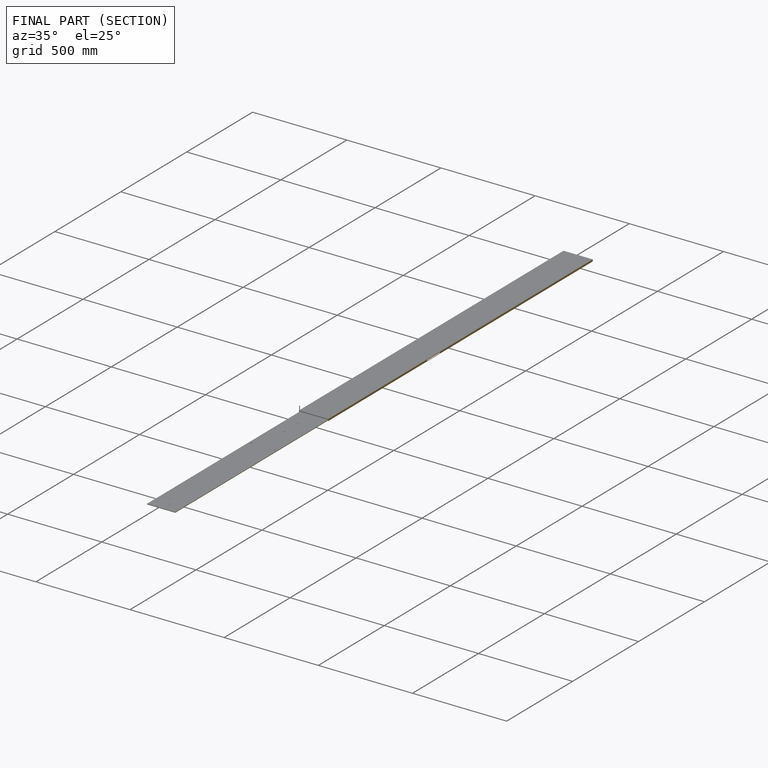
[diagram: finished part — half-section view (interior)]
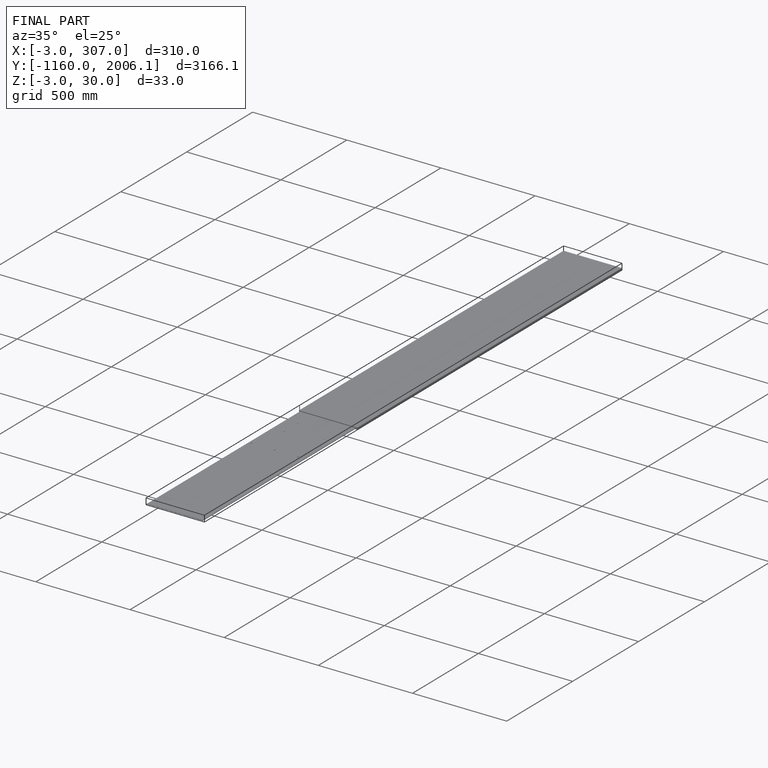
[diagram: finished part — iso view with bounding-box wireframe]
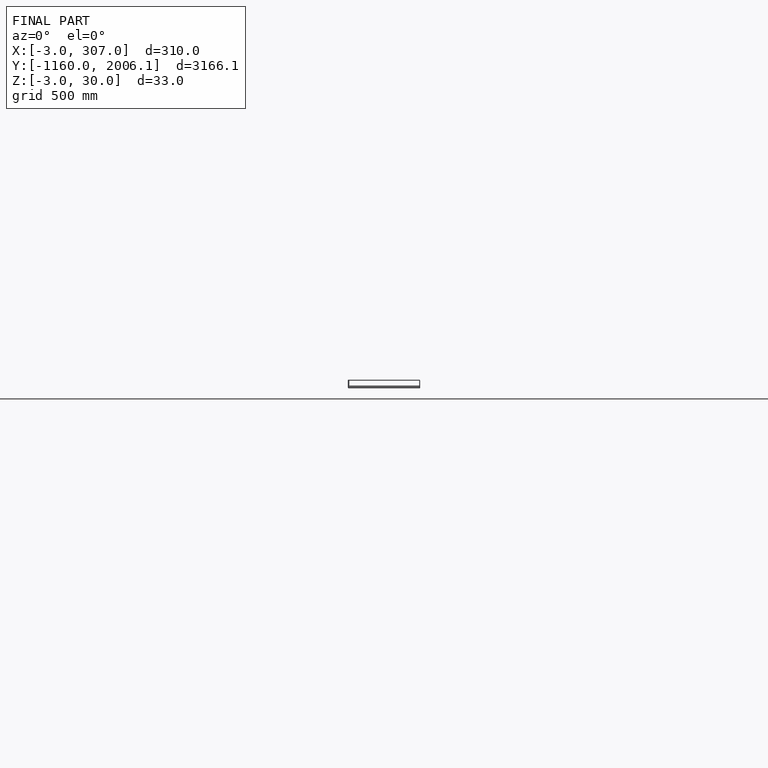
[diagram: finished part — front view with bounding-box wireframe]
